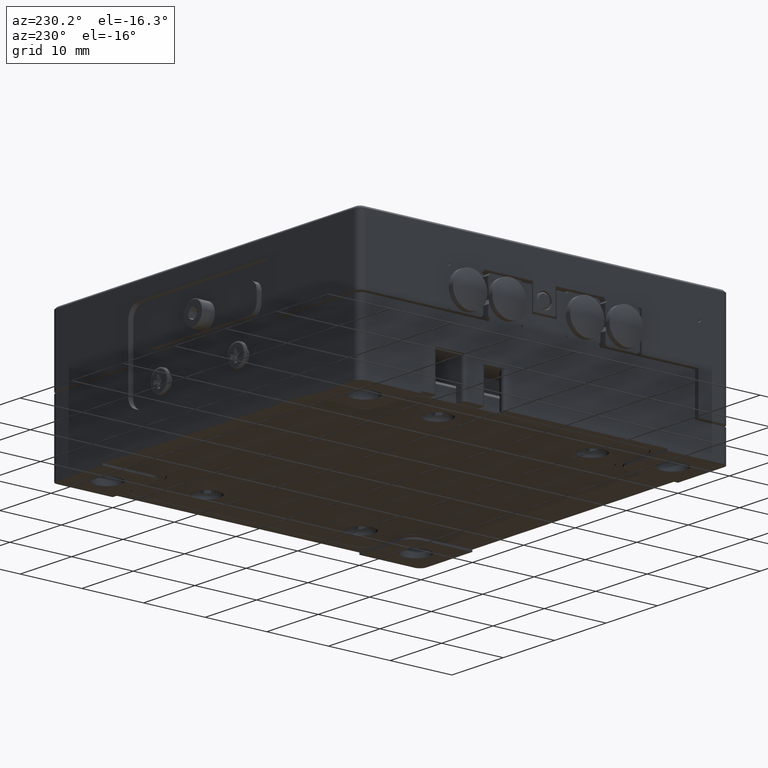
[diagram: clean part render]
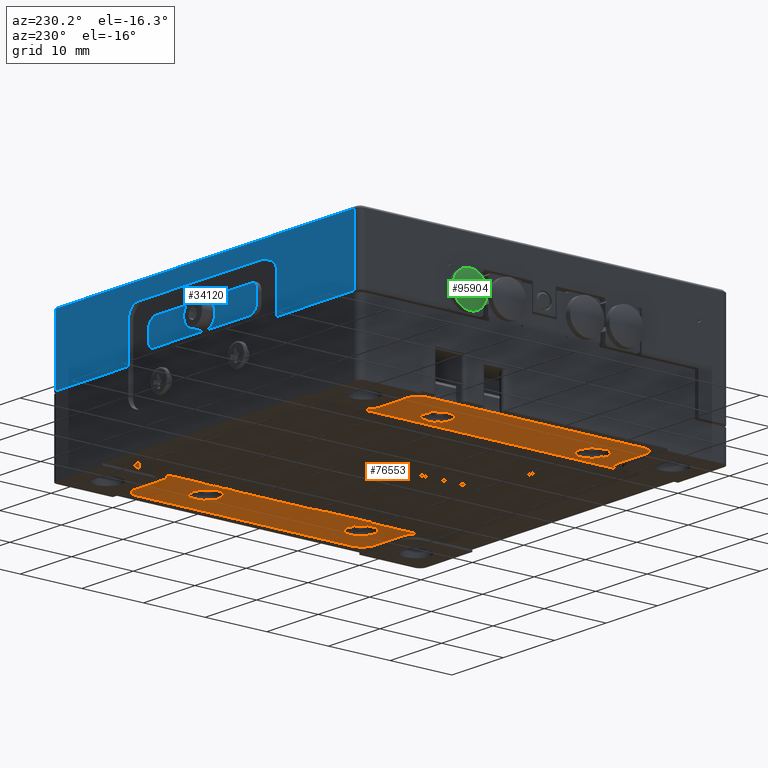
[diagram: same view with three faces highlighted in distinct colors, each labeled with its STEP entity id]
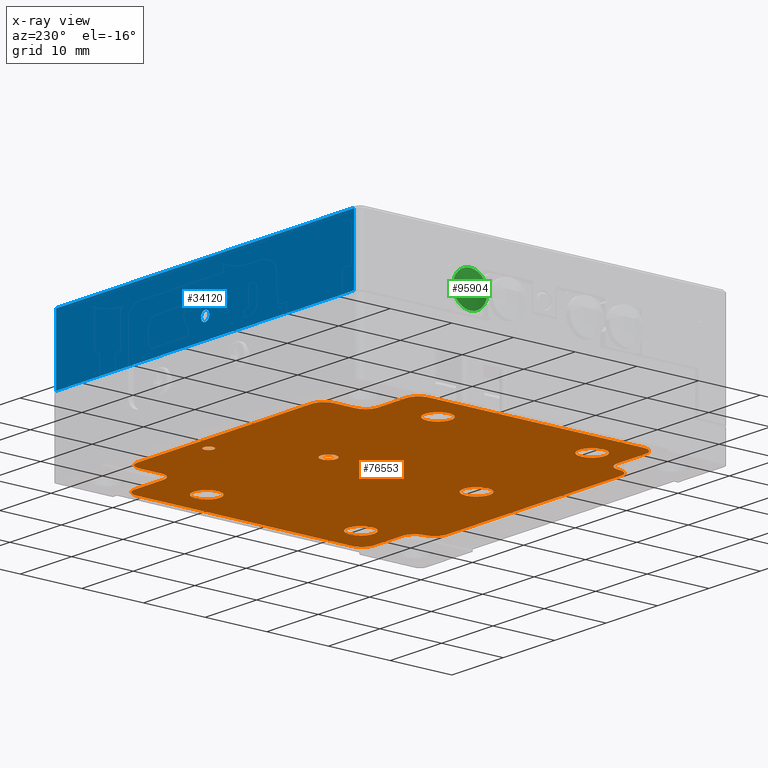
[diagram: x-ray of the same camera — body ghosted, the three highlighted faces saturated]
A machine part, auxiliary view with three faces highlighted in distinct colors.
The next image is the same camera in x-ray (body ghosted, the three faces saturated) — at least one of them is partly hidden behind the body in this view.
Their STEP definitions:

[orange] entity #76553 — the highlighted planar face has unit normal (0, 0, -1).
#872 = FACE_BOUND ( 'NONE', #43473, .T. ) ;
#1615 = VERTEX_POINT ( 'NONE', #44664 ) ;
#2040 = CARTESIAN_POINT ( 'NONE',  ( -18.89999999999999858, -23.30000000000000071, -11.10000000000000142 ) ) ;
#2225 = CIRCLE ( 'NONE', #28831, 2.000000000000001776 ) ;
#2329 = ORIENTED_EDGE ( 'NONE', *, *, #23866, .T. ) ;
#2961 = EDGE_LOOP ( 'NONE', ( #2329 ) ) ;
#2969 = DIRECTION ( 'NONE',  ( -0.000000000000000000, -0.000000000000000000, 1.000000000000000000 ) ) ;
#3439 = DIRECTION ( 'NONE',  ( -0.000000000000000000, -0.000000000000000000, 1.000000000000000000 ) ) ;
#3603 = DIRECTION ( 'NONE',  ( 1.000000000000000000, -0.000000000000000000, 0.000000000000000000 ) ) ;
#3886 = AXIS2_PLACEMENT_3D ( 'NONE', #31877, #61796, #91702 ) ;
#3999 = EDGE_CURVE ( 'NONE', #17510, #1615, #80121, .T. ) ;
#4103 = LINE ( 'NONE', #19291, #86488 ) ;
#4201 = DIRECTION ( 'NONE',  ( 1.000000000000000000, -0.000000000000000000, 0.000000000000000000 ) ) ;
#4639 = CARTESIAN_POINT ( 'NONE',  ( -26.39999999999999858, -19.40000000000000213, -11.10000000000000142 ) ) ;
#5111 = EDGE_LOOP ( 'NONE', ( #31975 ) ) ;
#5220 = CARTESIAN_POINT ( 'NONE',  ( 16.89999999999999858, -23.30000000000000071, -11.10000000000000142 ) ) ;
#5391 = EDGE_CURVE ( 'NONE', #71247, #46331, #53441, .T. ) ;
#5544 = EDGE_CURVE ( 'NONE', #16509, #16509, #77899, .T. ) ;
#5767 = VERTEX_POINT ( 'NONE', #44520 ) ;
#6465 = CARTESIAN_POINT ( 'NONE',  ( -18.89999999999999858, 21.40000000000000213, -11.10000000000000142 ) ) ;
#7677 = AXIS2_PLACEMENT_3D ( 'NONE', #72694, #29077, #88402 ) ;
#8932 = DIRECTION ( 'NONE',  ( 0.000000000000000000, 0.000000000000000000, -1.000000000000000000 ) ) ;
#8944 = DIRECTION ( 'NONE',  ( 0.000000000000000000, 1.000000000000000000, 0.000000000000000000 ) ) ;
#8958 = VERTEX_POINT ( 'NONE', #17016 ) ;
#9133 = CARTESIAN_POINT ( 'NONE',  ( 28.40000000000000213, -17.39999999999999858, -11.10000000000000142 ) ) ;
#9152 = CARTESIAN_POINT ( 'NONE',  ( -1.250000000000000000, 10.00000000000000000, -11.10000000000000142 ) ) ;
#9509 = ORIENTED_EDGE ( 'NONE', *, *, #70780, .T. ) ;
#9554 = VERTEX_POINT ( 'NONE', #32574 ) ;
#9726 = AXIS2_PLACEMENT_3D ( 'NONE', #60714, #74452, #68530 ) ;
#9755 = EDGE_LOOP ( 'NONE', ( #37040, #72857, #9509, #61127, #54636, #67169, #74971, #22938, #85957, #19834, #13866, #17520, #59660, #41329, #25100, #29071, #70285, #36752, #94416, #43777, #57597, #95179 ) ) ;
#9788 = AXIS2_PLACEMENT_3D ( 'NONE', #92055, #53840, #54809 ) ;
#12686 = DIRECTION ( 'NONE',  ( -0.000000000000000000, -0.000000000000000000, 1.000000000000000000 ) ) ;
#12984 = AXIS2_PLACEMENT_3D ( 'NONE', #45687, #23167, #44738 ) ;
#13134 = EDGE_CURVE ( 'NONE', #44734, #81887, #23831, .T. ) ;
#13356 = VECTOR ( 'NONE', #25297, 1000.000000000000000 ) ;
#13384 = EDGE_CURVE ( 'NONE', #85126, #85126, #34814, .T. ) ;
#13541 = DIRECTION ( 'NONE',  ( -0.000000000000000000, -0.000000000000000000, 1.000000000000000000 ) ) ;
#13866 = ORIENTED_EDGE ( 'NONE', *, *, #23756, .T. ) ;
#13979 = AXIS2_PLACEMENT_3D ( 'NONE', #14146, #88674, #44523 ) ;
#14146 = CARTESIAN_POINT ( 'NONE',  ( 18.89999999999999858, -23.30000000000000071, -11.10000000000000142 ) ) ;
#14159 = EDGE_LOOP ( 'NONE', ( #33671 ) ) ;
#15125 = CARTESIAN_POINT ( 'NONE',  ( 20.89999999999999858, 19.40000000000000213, -11.10000000000000142 ) ) ;
#15947 = VECTOR ( 'NONE', #62114, 1000.000000000000000 ) ;
#16509 = VERTEX_POINT ( 'NONE', #9152 ) ;
#16900 = VECTOR ( 'NONE', #24972, 1000.000000000000000 ) ;
#16952 = CARTESIAN_POINT ( 'NONE',  ( 18.89997260056278350, -21.34999931501756976, -11.10000000000000142 ) ) ;
#17016 = CARTESIAN_POINT ( 'NONE',  ( 26.39999999999999858, -19.40000000000000213, -11.10000000000000142 ) ) ;
#17166 = CARTESIAN_POINT ( 'NONE',  ( -24.60000000000000142, -14.00000000000000000, -11.10000000000000142 ) ) ;
#17510 = VERTEX_POINT ( 'NONE', #45085 ) ;
#17520 = ORIENTED_EDGE ( 'NONE', *, *, #72331, .T. ) ;
#17681 = DIRECTION ( 'NONE',  ( -0.000000000000000000, -1.000000000000000000, -0.000000000000000000 ) ) ;
#17971 = CARTESIAN_POINT ( 'NONE',  ( 20.39999999999999858, -14.00000000000000000, -11.10000000000000142 ) ) ;
#18476 = EDGE_CURVE ( 'NONE', #34510, #17510, #27167, .T. ) ;
#19107 = CARTESIAN_POINT ( 'NONE',  ( -24.60000000000000142, 11.00000000000000000, -11.10000000000000142 ) ) ;
#19291 = CARTESIAN_POINT ( 'NONE',  ( 18.89999999999999858, 19.40000000000000213, -11.10000000000000142 ) ) ;
#19834 = ORIENTED_EDGE ( 'NONE', *, *, #48270, .T. ) ;
#20087 = DIRECTION ( 'NONE',  ( -0.000000000000000000, -0.000000000000000000, 1.000000000000000000 ) ) ;
#20294 = VERTEX_POINT ( 'NONE', #15125 ) ;
#20296 = ORIENTED_EDGE ( 'NONE', *, *, #5544, .T. ) ;
#20768 = CARTESIAN_POINT ( 'NONE',  ( 20.39999999999999858, 11.00000000000000000, -11.10000000000000142 ) ) ;
#20928 = DIRECTION ( 'NONE',  ( -1.000000000000000000, 0.000000000000000000, -0.000000000000000000 ) ) ;
#21391 = DIRECTION ( 'NONE',  ( -1.000000000000000000, 0.000000000000000000, 0.000000000000000000 ) ) ;
#21901 = VERTEX_POINT ( 'NONE', #5220 ) ;
#21989 = PLANE ( 'NONE',  #13979 ) ;
#22825 = EDGE_CURVE ( 'NONE', #93368, #43256, #62283, .T. ) ;
#22938 = ORIENTED_EDGE ( 'NONE', *, *, #93658, .T. ) ;
#23167 = DIRECTION ( 'NONE',  ( 0.000000000000000000, 0.000000000000000000, 1.000000000000000000 ) ) ;
#23618 = DIRECTION ( 'NONE',  ( -1.000000000000000000, 0.000000000000000000, 0.000000000000000000 ) ) ;
#23756 = EDGE_CURVE ( 'NONE', #59026, #24848, #64830, .T. ) ;
#23831 = CIRCLE ( 'NONE', #9726, 2.000000000000001776 ) ;
#23866 = EDGE_CURVE ( 'NONE', #53444, #53444, #35445, .T. ) ;
#24072 = CARTESIAN_POINT ( 'NONE',  ( 20.89999999999999858, -19.40000000000000213, -11.10000000000000142 ) ) ;
#24618 = LINE ( 'NONE', #91295, #33991 ) ;
#24848 = VERTEX_POINT ( 'NONE', #6465 ) ;
#24972 = DIRECTION ( 'NONE',  ( -0.000000000000000000, -1.000000000000000000, -0.000000000000000000 ) ) ;
#25100 = ORIENTED_EDGE ( 'NONE', *, *, #43979, .T. ) ;
#25297 = DIRECTION ( 'NONE',  ( -1.000000000000000000, 0.000000000000000000, -0.000000000000000000 ) ) ;
#26086 = AXIS2_PLACEMENT_3D ( 'NONE', #63764, #2969, #85344 ) ;
#26922 = DIRECTION ( 'NONE',  ( -1.000000000000000000, 0.000000000000000000, 0.000000000000000000 ) ) ;
#27096 = CARTESIAN_POINT ( 'NONE',  ( 26.39999999999999858, -17.39999999999999858, -11.10000000000000142 ) ) ;
#27167 = CIRCLE ( 'NONE', #47636, 2.000000000000000000 ) ;
#28831 = AXIS2_PLACEMENT_3D ( 'NONE', #27096, #64853, #57483 ) ;
#29071 = ORIENTED_EDGE ( 'NONE', *, *, #5391, .T. ) ;
#29077 = DIRECTION ( 'NONE',  ( 0.000000000000000000, 0.000000000000000000, 1.000000000000000000 ) ) ;
#29215 = CARTESIAN_POINT ( 'NONE',  ( -2.100000000000000089, -14.00000000000000000, -11.10000000000000142 ) ) ;
#29338 = FACE_BOUND ( 'NONE', #72238, .T. ) ;
#31877 = CARTESIAN_POINT ( 'NONE',  ( 20.89999999999999858, 21.39999999999999858, -11.10000000000000142 ) ) ;
#31975 = ORIENTED_EDGE ( 'NONE', *, *, #34876, .T. ) ;
#32574 = CARTESIAN_POINT ( 'NONE',  ( 7.300000000000000711, 24.00000000000000000, -11.10000000000000142 ) ) ;
#32807 = CARTESIAN_POINT ( 'NONE',  ( 18.89999999999999858, -23.30000000000000071, -11.10000000000000142 ) ) ;
#33155 = DIRECTION ( 'NONE',  ( -0.000000000000000000, -0.000000000000000000, -1.000000000000000000 ) ) ;
#33294 = DIRECTION ( 'NONE',  ( -1.000000000000000000, 0.000000000000000000, 0.000000000000000000 ) ) ;
#33366 = VECTOR ( 'NONE', #33868, 1000.000000000000000 ) ;
#33636 = CIRCLE ( 'NONE', #58676, 2.100000000000000977 ) ;
#33671 = ORIENTED_EDGE ( 'NONE', *, *, #56329, .T. ) ;
#33868 = DIRECTION ( 'NONE',  ( 0.000000000000000000, 1.000000000000000000, 0.000000000000000000 ) ) ;
#33991 = VECTOR ( 'NONE', #54527, 1000.000000000000000 ) ;
#34236 = CARTESIAN_POINT ( 'NONE',  ( 18.89999999999999858, 24.80000000000000426, -11.10000000000000142 ) ) ;
#34510 = VERTEX_POINT ( 'NONE', #63679 ) ;
#34578 = CIRCLE ( 'NONE', #78389, 2.000000000000000000 ) ;
#34769 = DIRECTION ( 'NONE',  ( -1.000000000000000000, 0.000000000000000000, 0.000000000000000000 ) ) ;
#34814 = CIRCLE ( 'NONE', #9788, 2.100000000000000977 ) ;
#34876 = EDGE_CURVE ( 'NONE', #44879, #44879, #45460, .T. ) ;
#34916 = DIRECTION ( 'NONE',  ( 1.000000000000000000, 0.000000000000000000, 0.000000000000000000 ) ) ;
#35408 = DIRECTION ( 'NONE',  ( -0.000000000000000000, -0.000000000000000000, -1.000000000000000000 ) ) ;
#35445 = CIRCLE ( 'NONE', #55845, 2.100000000000000977 ) ;
#35462 = VERTEX_POINT ( 'NONE', #82358 ) ;
#36025 = EDGE_CURVE ( 'NONE', #91960, #44667, #80022, .T. ) ;
#36752 = ORIENTED_EDGE ( 'NONE', *, *, #73447, .T. ) ;
#37040 = ORIENTED_EDGE ( 'NONE', *, *, #86192, .T. ) ;
#37374 = AXIS2_PLACEMENT_3D ( 'NONE', #54700, #90510, #62047 ) ;
#37757 = AXIS2_PLACEMENT_3D ( 'NONE', #74377, #44961, #68454 ) ;
#38040 = EDGE_CURVE ( 'NONE', #9554, #9554, #66238, .T. ) ;
#38107 = LINE ( 'NONE', #47406, #15947 ) ;
#38717 = EDGE_CURVE ( 'NONE', #55148, #21901, #49102, .T. ) ;
#39239 = VERTEX_POINT ( 'NONE', #66616 ) ;
#39397 = CARTESIAN_POINT ( 'NONE',  ( 28.39999999999999858, 17.39999999999999858, -11.10000000000000142 ) ) ;
#40661 = CARTESIAN_POINT ( 'NONE',  ( 0.000000000000000000, 10.00000000000000000, -11.10000000000000142 ) ) ;
#41329 = ORIENTED_EDGE ( 'NONE', *, *, #3999, .T. ) ;
#41808 = DIRECTION ( 'NONE',  ( -1.000000000000000000, 0.000000000000000000, 0.000000000000000000 ) ) ;
#43253 = DIRECTION ( 'NONE',  ( -0.000000000000000000, -0.000000000000000000, 1.000000000000000000 ) ) ;
#43256 = VERTEX_POINT ( 'NONE', #9133 ) ;
#43473 = EDGE_LOOP ( 'NONE', ( #88098 ) ) ;
#43777 = ORIENTED_EDGE ( 'NONE', *, *, #22825, .T. ) ;
#43792 = VERTEX_POINT ( 'NONE', #20768 ) ;
#43935 = CARTESIAN_POINT ( 'NONE',  ( 18.89999999999999858, -19.40000000000000213, -11.10000000000000142 ) ) ;
#43979 = EDGE_CURVE ( 'NONE', #1615, #71247, #34578, .T. ) ;
#44520 = CARTESIAN_POINT ( 'NONE',  ( 26.39999999999999858, 19.40000000000000213, -11.10000000000000142 ) ) ;
#44523 = DIRECTION ( 'NONE',  ( -1.000000000000000000, 0.000000000000000000, -0.000000000000000000 ) ) ;
#44664 = CARTESIAN_POINT ( 'NONE',  ( 16.89999999999999858, 26.80000000000000426, -11.10000000000000142 ) ) ;
#44667 = VERTEX_POINT ( 'NONE', #78594 ) ;
#44734 = VERTEX_POINT ( 'NONE', #51587 ) ;
#44738 = DIRECTION ( 'NONE',  ( 1.000000000000000000, 0.000000000000000000, 0.000000000000000000 ) ) ;
#44879 = VERTEX_POINT ( 'NONE', #29215 ) ;
#44961 = DIRECTION ( 'NONE',  ( 0.000000000000000000, 0.000000000000000000, -1.000000000000000000 ) ) ;
#45085 = CARTESIAN_POINT ( 'NONE',  ( -16.89999999999999858, 26.80000000000000426, -11.10000000000000142 ) ) ;
#45135 = CARTESIAN_POINT ( 'NONE',  ( -18.90000000000094005, -21.34999999999990195, -11.10000000000000142 ) ) ;
#45460 = CIRCLE ( 'NONE', #83044, 2.100000000000000089 ) ;
#45687 = CARTESIAN_POINT ( 'NONE',  ( 6.500000000000000888, 24.00000000000000000, -11.10000000000000142 ) ) ;
#46123 = VERTEX_POINT ( 'NONE', #45135 ) ;
#46150 = CIRCLE ( 'NONE', #3886, 1.999999999999998224 ) ;
#46331 = VERTEX_POINT ( 'NONE', #59239 ) ;
#47406 = CARTESIAN_POINT ( 'NONE',  ( 18.89999999999999858, -19.40000000000000213, -11.10000000000000142 ) ) ;
#47636 = AXIS2_PLACEMENT_3D ( 'NONE', #51095, #35408, #34916 ) ;
#48072 = CARTESIAN_POINT ( 'NONE',  ( 28.39999999999999858, -23.30000000000000071, -11.10000000000000142 ) ) ;
#48270 = EDGE_CURVE ( 'NONE', #81887, #59026, #4103, .T. ) ;
#48562 = EDGE_CURVE ( 'NONE', #35462, #46123, #81793, .T. ) ;
#49102 = CIRCLE ( 'NONE', #71000, 2.000000000000001776 ) ;
#49753 = AXIS2_PLACEMENT_3D ( 'NONE', #40661, #12686, #33294 ) ;
#50590 = DIRECTION ( 'NONE',  ( -1.000000000000000000, 0.000000000000000000, 0.000000000000000000 ) ) ;
#51095 = CARTESIAN_POINT ( 'NONE',  ( -16.89999999999999858, 24.80000000000000426, -11.10000000000000142 ) ) ;
#51315 = AXIS2_PLACEMENT_3D ( 'NONE', #94434, #13541, #21391 ) ;
#51390 = FACE_BOUND ( 'NONE', #82589, .T. ) ;
#51587 = CARTESIAN_POINT ( 'NONE',  ( -28.39999999999999858, 17.39999999999999858, -11.10000000000000142 ) ) ;
#51871 = FACE_BOUND ( 'NONE', #2961, .T. ) ;
#52856 = FACE_BOUND ( 'NONE', #59185, .T. ) ;
#53077 = CIRCLE ( 'NONE', #7677, 1.999999999999998224 ) ;
#53441 = LINE ( 'NONE', #32807, #16900 ) ;
#53444 = VERTEX_POINT ( 'NONE', #17166 ) ;
#53541 = LINE ( 'NONE', #2040, #76176 ) ;
#53840 = DIRECTION ( 'NONE',  ( -0.000000000000000000, -0.000000000000000000, 1.000000000000000000 ) ) ;
#54527 = DIRECTION ( 'NONE',  ( 1.000000000000000000, -0.000000000000000000, 0.000000000000000000 ) ) ;
#54636 = ORIENTED_EDGE ( 'NONE', *, *, #75491, .T. ) ;
#54700 = CARTESIAN_POINT ( 'NONE',  ( 20.89999999999999858, -21.39999999999999858, -11.09999999999999964 ) ) ;
#54809 = DIRECTION ( 'NONE',  ( -1.000000000000000000, 0.000000000000000000, 0.000000000000000000 ) ) ;
#55148 = VERTEX_POINT ( 'NONE', #16952 ) ;
#55845 = AXIS2_PLACEMENT_3D ( 'NONE', #79883, #3439, #34769 ) ;
#56020 = VECTOR ( 'NONE', #4201, 1000.000000000000000 ) ;
#56185 = LINE ( 'NONE', #85625, #13356 ) ;
#56202 = DIRECTION ( 'NONE',  ( 1.000000000000000000, 0.000000000000000000, 0.000000000000000000 ) ) ;
#56327 = EDGE_CURVE ( 'NONE', #46331, #20294, #46150, .T. ) ;
#56329 = EDGE_CURVE ( 'NONE', #43792, #43792, #33636, .T. ) ;
#56917 = VECTOR ( 'NONE', #17681, 1000.000000000000000 ) ;
#57483 = DIRECTION ( 'NONE',  ( 1.000000000000000000, 0.000000000000000000, 0.000000000000000000 ) ) ;
#57597 = ORIENTED_EDGE ( 'NONE', *, *, #93481, .T. ) ;
#58676 = AXIS2_PLACEMENT_3D ( 'NONE', #79875, #20087, #26922 ) ;
#59026 = VERTEX_POINT ( 'NONE', #73976 ) ;
#59185 = EDGE_LOOP ( 'NONE', ( #63846 ) ) ;
#59239 = CARTESIAN_POINT ( 'NONE',  ( 18.89999999999999858, 21.40000000000000213, -11.10000000000000142 ) ) ;
#59660 = ORIENTED_EDGE ( 'NONE', *, *, #18476, .T. ) ;
#60714 = CARTESIAN_POINT ( 'NONE',  ( -26.39999999999999858, 17.39999999999999858, -11.10000000000000142 ) ) ;
#61127 = ORIENTED_EDGE ( 'NONE', *, *, #48562, .T. ) ;
#61796 = DIRECTION ( 'NONE',  ( 0.000000000000000000, 0.000000000000000000, 1.000000000000000000 ) ) ;
#62047 = DIRECTION ( 'NONE',  ( -1.000000000000000000, -1.734723475976808672E-15, 0.000000000000000000 ) ) ;
#62114 = DIRECTION ( 'NONE',  ( -1.000000000000000000, 0.000000000000000000, -0.000000000000000000 ) ) ;
#62283 = LINE ( 'NONE', #48072, #56917 ) ;
#63401 = DIRECTION ( 'NONE',  ( 0.000000000000000000, 0.000000000000000000, -1.000000000000000000 ) ) ;
#63679 = CARTESIAN_POINT ( 'NONE',  ( -18.89999999999999858, 24.80000000000000426, -11.10000000000000142 ) ) ;
#63764 = CARTESIAN_POINT ( 'NONE',  ( -20.89999999999999858, 21.39999999999999858, -11.09999999999999964 ) ) ;
#63846 = ORIENTED_EDGE ( 'NONE', *, *, #13384, .T. ) ;
#64830 = CIRCLE ( 'NONE', #26086, 1.999999999999998224 ) ;
#64853 = DIRECTION ( 'NONE',  ( -0.000000000000000000, -0.000000000000000000, -1.000000000000000000 ) ) ;
#65219 = LINE ( 'NONE', #79913, #33366 ) ;
#66238 = CIRCLE ( 'NONE', #12984, 0.8000000000000003775 ) ;
#66616 = CARTESIAN_POINT ( 'NONE',  ( -20.90000000000000213, -19.40000000000000213, -11.10000000000000142 ) ) ;
#67169 = ORIENTED_EDGE ( 'NONE', *, *, #90007, .T. ) ;
#67641 = AXIS2_PLACEMENT_3D ( 'NONE', #83938, #8932, #23618 ) ;
#68454 = DIRECTION ( 'NONE',  ( -1.000000000000000000, 0.000000000000000000, 0.000000000000000000 ) ) ;
#68507 = CIRCLE ( 'NONE', #51315, 2.100000000000000977 ) ;
#68530 = DIRECTION ( 'NONE',  ( 1.000000000000000000, 0.000000000000000000, 0.000000000000000000 ) ) ;
#68606 = EDGE_CURVE ( 'NONE', #5767, #93368, #80680, .T. ) ;
#70285 = ORIENTED_EDGE ( 'NONE', *, *, #56327, .T. ) ;
#70722 = CARTESIAN_POINT ( 'NONE',  ( 26.39999999999999858, 17.39999999999999858, -11.09999999999999964 ) ) ;
#70780 = EDGE_CURVE ( 'NONE', #21901, #35462, #56185, .T. ) ;
#70894 = CARTESIAN_POINT ( 'NONE',  ( 16.89999999999999858, -21.30000000000000071, -11.10000000000000142 ) ) ;
#71000 = AXIS2_PLACEMENT_3D ( 'NONE', #70894, #33155, #56202 ) ;
#71247 = VERTEX_POINT ( 'NONE', #34236 ) ;
#71344 = CARTESIAN_POINT ( 'NONE',  ( 18.89999999999999858, 26.80000000000000426, -11.10000000000000142 ) ) ;
#72238 = EDGE_LOOP ( 'NONE', ( #20296 ) ) ;
#72331 = EDGE_CURVE ( 'NONE', #24848, #34510, #53541, .T. ) ;
#72694 = CARTESIAN_POINT ( 'NONE',  ( -20.89999999999999858, -21.39999999999999858, -11.10000000000000142 ) ) ;
#72857 = ORIENTED_EDGE ( 'NONE', *, *, #38717, .T. ) ;
#73447 = EDGE_CURVE ( 'NONE', #20294, #5767, #24618, .T. ) ;
#73976 = CARTESIAN_POINT ( 'NONE',  ( -20.90000000000000213, 19.40000000000000213, -11.10000000000000142 ) ) ;
#74377 = CARTESIAN_POINT ( 'NONE',  ( -26.39999999999999858, -17.39999999999999858, -11.09999999999999964 ) ) ;
#74452 = DIRECTION ( 'NONE',  ( -0.000000000000000000, -0.000000000000000000, -1.000000000000000000 ) ) ;
#74971 = ORIENTED_EDGE ( 'NONE', *, *, #36025, .T. ) ;
#75146 = CIRCLE ( 'NONE', #37374, 1.999999999999998224 ) ;
#75491 = EDGE_CURVE ( 'NONE', #46123, #39239, #53077, .T. ) ;
#76176 = VECTOR ( 'NONE', #8944, 1000.000000000000000 ) ;
#76553 = ADVANCED_FACE ( 'NONE', ( #51390, #872, #29338, #52856, #89145, #51871, #82290, #96007 ), #21989, .T. ) ;
#77258 = CARTESIAN_POINT ( 'NONE',  ( 16.89999999999999858, 24.80000000000000426, -11.09999999999999964 ) ) ;
#77899 = CIRCLE ( 'NONE', #49753, 1.250000000000000000 ) ;
#78389 = AXIS2_PLACEMENT_3D ( 'NONE', #77258, #92461, #82357 ) ;
#78594 = CARTESIAN_POINT ( 'NONE',  ( -28.40000000000000213, -17.39999999999999858, -11.09999999999999964 ) ) ;
#79455 = ORIENTED_EDGE ( 'NONE', *, *, #83301, .T. ) ;
#79832 = VERTEX_POINT ( 'NONE', #24072 ) ;
#79875 = CARTESIAN_POINT ( 'NONE',  ( 22.50000000000000000, 11.00000000000000000, -11.10000000000000142 ) ) ;
#79883 = CARTESIAN_POINT ( 'NONE',  ( -22.50000000000000000, -14.00000000000000000, -11.10000000000000142 ) ) ;
#79913 = CARTESIAN_POINT ( 'NONE',  ( -28.39999999999999503, -23.30000000000000071, -11.10000000000000142 ) ) ;
#80022 = CIRCLE ( 'NONE', #37757, 2.000000000000001776 ) ;
#80121 = LINE ( 'NONE', #71344, #56020 ) ;
#80680 = CIRCLE ( 'NONE', #90077, 2.000000000000001776 ) ;
#81793 = CIRCLE ( 'NONE', #67641, 2.000000000000001776 ) ;
#81887 = VERTEX_POINT ( 'NONE', #84642 ) ;
#82290 = FACE_BOUND ( 'NONE', #14159, .T. ) ;
#82357 = DIRECTION ( 'NONE',  ( -1.000000000000000000, 0.000000000000000000, 0.000000000000000000 ) ) ;
#82358 = CARTESIAN_POINT ( 'NONE',  ( -16.89999999999999858, -23.30000000000000071, -11.10000000000000142 ) ) ;
#82589 = EDGE_LOOP ( 'NONE', ( #79455 ) ) ;
#83044 = AXIS2_PLACEMENT_3D ( 'NONE', #94735, #43253, #50590 ) ;
#83301 = EDGE_CURVE ( 'NONE', #93145, #93145, #68507, .T. ) ;
#83938 = CARTESIAN_POINT ( 'NONE',  ( -16.89999999999999858, -21.30000000000000071, -11.09999999999999964 ) ) ;
#84642 = CARTESIAN_POINT ( 'NONE',  ( -26.39999999999999858, 19.40000000000000213, -11.10000000000000142 ) ) ;
#85126 = VERTEX_POINT ( 'NONE', #17971 ) ;
#85344 = DIRECTION ( 'NONE',  ( -1.000000000000000000, 0.000000000000000000, 0.000000000000000000 ) ) ;
#85625 = CARTESIAN_POINT ( 'NONE',  ( 18.89999999999999858, -23.30000000000000071, -11.10000000000000142 ) ) ;
#85957 = ORIENTED_EDGE ( 'NONE', *, *, #13134, .T. ) ;
#86192 = EDGE_CURVE ( 'NONE', #79832, #55148, #75146, .T. ) ;
#86488 = VECTOR ( 'NONE', #3603, 1000.000000000000000 ) ;
#88098 = ORIENTED_EDGE ( 'NONE', *, *, #38040, .T. ) ;
#88402 = DIRECTION ( 'NONE',  ( 1.000000000000000000, 0.000000000000000000, 0.000000000000000000 ) ) ;
#88674 = DIRECTION ( 'NONE',  ( 0.000000000000000000, 0.000000000000000000, -1.000000000000000000 ) ) ;
#89145 = FACE_BOUND ( 'NONE', #5111, .T. ) ;
#90007 = EDGE_CURVE ( 'NONE', #39239, #91960, #38107, .T. ) ;
#90077 = AXIS2_PLACEMENT_3D ( 'NONE', #70722, #63401, #41808 ) ;
#90510 = DIRECTION ( 'NONE',  ( -0.000000000000000000, -0.000000000000000000, 1.000000000000000000 ) ) ;
#91295 = CARTESIAN_POINT ( 'NONE',  ( 18.89999999999999858, 19.40000000000000213, -11.10000000000000142 ) ) ;
#91702 = DIRECTION ( 'NONE',  ( 1.000000000000000000, 0.000000000000000000, 0.000000000000000000 ) ) ;
#91960 = VERTEX_POINT ( 'NONE', #4639 ) ;
#92055 = CARTESIAN_POINT ( 'NONE',  ( 22.50000000000000000, -14.00000000000000000, -11.10000000000000142 ) ) ;
#92461 = DIRECTION ( 'NONE',  ( 0.000000000000000000, 0.000000000000000000, -1.000000000000000000 ) ) ;
#93145 = VERTEX_POINT ( 'NONE', #19107 ) ;
#93368 = VERTEX_POINT ( 'NONE', #39397 ) ;
#93481 = EDGE_CURVE ( 'NONE', #43256, #8958, #2225, .T. ) ;
#93658 = EDGE_CURVE ( 'NONE', #44667, #44734, #65219, .T. ) ;
#94416 = ORIENTED_EDGE ( 'NONE', *, *, #68606, .T. ) ;
#94434 = CARTESIAN_POINT ( 'NONE',  ( -22.50000000000000000, 11.00000000000000000, -11.10000000000000142 ) ) ;
#94735 = CARTESIAN_POINT ( 'NONE',  ( 0.000000000000000000, -14.00000000000000000, -11.10000000000000142 ) ) ;
#95179 = ORIENTED_EDGE ( 'NONE', *, *, #95487, .T. ) ;
#95424 = LINE ( 'NONE', #43935, #96230 ) ;
#95487 = EDGE_CURVE ( 'NONE', #8958, #79832, #95424, .T. ) ;
#96007 = FACE_OUTER_BOUND ( 'NONE', #9755, .T. ) ;
#96230 = VECTOR ( 'NONE', #20928, 1000.000000000000000 ) ;

[blue] entity #34120 — the highlighted planar face has unit normal (0, 1, 0).
#394 = VERTEX_POINT ( 'NONE', #81902 ) ;
#2159 = VECTOR ( 'NONE', #49042, 1000.000000000000000 ) ;
#2909 = VECTOR ( 'NONE', #23445, 1000.000000000000000 ) ;
#7828 = PLANE ( 'NONE',  #81383 ) ;
#8750 = CARTESIAN_POINT ( 'NONE',  ( -29.00000001969999985, 30.00000000000000355, -28.36746000000000123 ) ) ;
#12879 = CARTESIAN_POINT ( 'NONE',  ( 29.00000001970000341, 30.00000000000000000, 6.599999999999999645 ) ) ;
#13001 = EDGE_LOOP ( 'NONE', ( #32729 ) ) ;
#13739 = DIRECTION ( 'NONE',  ( 0.000000000000000000, 1.000000000000000000, 0.000000000000000000 ) ) ;
#16112 = VERTEX_POINT ( 'NONE', #55671 ) ;
#18579 = DIRECTION ( 'NONE',  ( 1.000000000000000000, -0.000000000000000000, 0.000000000000000000 ) ) ;
#18824 = DIRECTION ( 'NONE',  ( 0.000000000000000000, 0.000000000000000000, 1.000000000000000000 ) ) ;
#20527 = VECTOR ( 'NONE', #35419, 1000.000000000000000 ) ;
#20721 = LINE ( 'NONE', #12879, #20527 ) ;
#23038 = DIRECTION ( 'NONE',  ( 0.000000000000000000, -0.000000000000000000, 1.000000000000000000 ) ) ;
#23445 = DIRECTION ( 'NONE',  ( -0.000000000000000000, -0.000000000000000000, -1.000000000000000000 ) ) ;
#25919 = LINE ( 'NONE', #85742, #68181 ) ;
#28412 = FACE_BOUND ( 'NONE', #13001, .T. ) ;
#28446 = ORIENTED_EDGE ( 'NONE', *, *, #57595, .F. ) ;
#31465 = VERTEX_POINT ( 'NONE', #34647 ) ;
#32729 = ORIENTED_EDGE ( 'NONE', *, *, #44573, .T. ) ;
#32928 = EDGE_LOOP ( 'NONE', ( #51414, #81165, #28446, #61960 ) ) ;
#34120 = ADVANCED_FACE ( 'NONE', ( #28412, #74499 ), #7828, .T. ) ;
#34647 = CARTESIAN_POINT ( 'NONE',  ( -29.00000000985000170, 30.00000000000000000, 0.3000000000000016542 ) ) ;
#35279 = LINE ( 'NONE', #65199, #2159 ) ;
#35419 = DIRECTION ( 'NONE',  ( -0.000000000000000000, 0.000000000000000000, -1.000000000000000000 ) ) ;
#42819 = VERTEX_POINT ( 'NONE', #94799 ) ;
#44573 = EDGE_CURVE ( 'NONE', #42819, #42819, #62719, .T. ) ;
#44757 = EDGE_CURVE ( 'NONE', #394, #94928, #20721, .T. ) ;
#49042 = DIRECTION ( 'NONE',  ( -1.000000000000000000, -0.000000000000000000, 0.000000000000000000 ) ) ;
#49654 = CARTESIAN_POINT ( 'NONE',  ( 0.000000000000000000, 30.00000000000000000, 3.500000000000000000 ) ) ;
#51414 = ORIENTED_EDGE ( 'NONE', *, *, #92766, .F. ) ;
#55671 = CARTESIAN_POINT ( 'NONE',  ( -29.00000001970001051, 29.99999999726600564, 11.00000000360892649 ) ) ;
#57595 = EDGE_CURVE ( 'NONE', #31465, #94928, #25919, .T. ) ;
#61651 = LINE ( 'NONE', #8750, #2909 ) ;
#61960 = ORIENTED_EDGE ( 'NONE', *, *, #75034, .F. ) ;
#62719 = CIRCLE ( 'NONE', #70548, 0.7999999999999999334 ) ;
#65199 = CARTESIAN_POINT ( 'NONE',  ( 0.000000000000000000, 29.99999999638000148, 11.00000000362000030 ) ) ;
#68181 = VECTOR ( 'NONE', #18579, 1000.000000000000000 ) ;
#70548 = AXIS2_PLACEMENT_3D ( 'NONE', #49654, #77635, #18824 ) ;
#74499 = FACE_OUTER_BOUND ( 'NONE', #32928, .T. ) ;
#75034 = EDGE_CURVE ( 'NONE', #16112, #31465, #61651, .T. ) ;
#77635 = DIRECTION ( 'NONE',  ( -0.000000000000000000, -1.000000000000000000, -0.000000000000000000 ) ) ;
#81165 = ORIENTED_EDGE ( 'NONE', *, *, #44757, .T. ) ;
#81383 = AXIS2_PLACEMENT_3D ( 'NONE', #81858, #13739, #23038 ) ;
#81858 = CARTESIAN_POINT ( 'NONE',  ( -30.00000000000000000, 30.00000000000000000, 6.599999999999999645 ) ) ;
#81902 = CARTESIAN_POINT ( 'NONE',  ( 29.00000001904501445, 29.99999999723287303, 11.00000000364472896 ) ) ;
#85742 = CARTESIAN_POINT ( 'NONE',  ( -30.00000000000000000, 30.00000000000000000, 0.2999999999999999889 ) ) ;
#90564 = CARTESIAN_POINT ( 'NONE',  ( 29.00000000985000170, 30.00000000000000000, 0.3000000000000007661 ) ) ;
#92766 = EDGE_CURVE ( 'NONE', #394, #16112, #35279, .T. ) ;
#94799 = CARTESIAN_POINT ( 'NONE',  ( 0.000000000000000000, 30.00000000000000000, 4.299999999999999822 ) ) ;
#94928 = VERTEX_POINT ( 'NONE', #90564 ) ;

[green] entity #95904 — the highlighted face is a freeform B-spline surface patch.
#329 =( BOUNDED_SURFACE ( )  B_SPLINE_SURFACE ( 3, 3, ( 
 ( #27662, #12953, #94829, #81094 ),
 ( #36449, #13450, #73236, #12472 ),
 ( #6557, #50682, #14414, #80605 ),
 ( #21779, #58526, #87473, #21299 ) ),
 .UNSPECIFIED., .F., .F., .F. ) 
 B_SPLINE_SURFACE_WITH_KNOTS ( ( 4, 4 ),
 ( 4, 4 ),
 ( 0.000000000000000000, 1.000000000000000000 ),
 ( 0.000000000000000000, 1.000000000000000000 ),
 .UNSPECIFIED. ) 
 GEOMETRIC_REPRESENTATION_ITEM ( )  RATIONAL_B_SPLINE_SURFACE ( (
 ( 1.000000000000000000, 0.9207362562937234651, 0.9207362562937234651, 1.000000000000000000),
 ( 0.9201911022256915595, 0.8472533105380782859, 0.8472533105380782859, 0.9201911022256915595),
 ( 0.9201911022256915595, 0.8472533105380782859, 0.8472533105380782859, 0.9201911022256915595),
 ( 1.000000000000000000, 0.9207362562937234651, 0.9207362562937234651, 1.000000000000000000) ) ) 
 REPRESENTATION_ITEM ( '' )  SURFACE ( )  );
#1607 = CARTESIAN_POINT ( 'NONE',  ( -30.80659966457000110, 12.69999999999999929, 3.299999999999999822 ) ) ;
#5107 = FACE_OUTER_BOUND ( 'NONE', #36362, .T. ) ;
#6557 = CARTESIAN_POINT ( 'NONE',  ( -31.01322084582801608, 13.72407500258071877, 6.267997773655333837 ) ) ;
#7450 = EDGE_CURVE ( 'NONE', #61576, #61576, #87215, .T. ) ;
#12472 = CARTESIAN_POINT ( 'NONE',  ( -31.01852799272420214, 11.66171252000837555, 0.3468402697080070207 ) ) ;
#12953 = CARTESIAN_POINT ( 'NONE',  ( -31.00456142563093564, 9.847353062327451667, 4.210589291284562385 ) ) ;
#13450 = CARTESIAN_POINT ( 'NONE',  ( -32.02709004309301122, 11.66171252000837555, 4.379740570941006439 ) ) ;
#14414 = CARTESIAN_POINT ( 'NONE',  ( -32.03220000980623894, 13.72407500258072055, 2.236113120316937319 ) ) ;
#21299 = CARTESIAN_POINT ( 'NONE',  ( -30.15969803399611138, 15.54065588040892898, 0.8064305902840823714 ) ) ;
#21779 = CARTESIAN_POINT ( 'NONE',  ( -30.15347626168435724, 15.54065588040892898, 5.805161242522800080 ) ) ;
#24812 = CARTESIAN_POINT ( 'NONE',  ( -30.80659966457000110, 12.69999999999999929, 0.5000000000000000000 ) ) ;
#27662 = CARTESIAN_POINT ( 'NONE',  ( -30.14778572180870242, 9.847353062327451667, 5.802097786486095643 ) ) ;
#31494 = DIRECTION ( 'NONE',  ( 0.000000000000000000, 0.000000000000000000, -1.000000000000000000 ) ) ;
#36362 = EDGE_LOOP ( 'NONE', ( #51939 ) ) ;
#36449 = CARTESIAN_POINT ( 'NONE',  ( -31.01115948420364177, 11.66171252000837555, 6.266888056326220813 ) ) ;
#50682 = CARTESIAN_POINT ( 'NONE',  ( -32.02953139739826582, 13.72407500258072055, 4.380144430742848982 ) ) ;
#51939 = ORIENTED_EDGE ( 'NONE', *, *, #7450, .F. ) ;
#58526 = CARTESIAN_POINT ( 'NONE',  ( -31.01130096315814200, 15.54065588040892898, 4.211704175873170364 ) ) ;
#61576 = VERTEX_POINT ( 'NONE', #24812 ) ;
#73236 = CARTESIAN_POINT ( 'NONE',  ( -32.02975765772213634, 11.66171252000837555, 2.236510901513766747 ) ) ;
#76282 = AXIS2_PLACEMENT_3D ( 'NONE', #1607, #91817, #31494 ) ;
#80605 = CARTESIAN_POINT ( 'NONE',  ( -31.02059211042209341, 13.72407500258071877, 0.3457356872410867754 ) ) ;
#81094 = CARTESIAN_POINT ( 'NONE',  ( -30.15399988577747337, 9.847353062327451667, 0.8094798711572939176 ) ) ;
#87215 = CIRCLE ( 'NONE', #76282, 2.799999999999999822 ) ;
#87473 = CARTESIAN_POINT ( 'NONE',  ( -31.01355342589080522, 15.54065588040892898, 2.402018134559412932 ) ) ;
#91817 = DIRECTION ( 'NONE',  ( 1.000000000000000000, 0.000000000000000000, 0.000000000000000000 ) ) ;
#94829 = CARTESIAN_POINT ( 'NONE',  ( -31.00681113392191790, 9.847353062327451667, 2.403116238713284059 ) ) ;
#95904 = ADVANCED_FACE ( 'NONE', ( #5107 ), #329, .T. ) ;